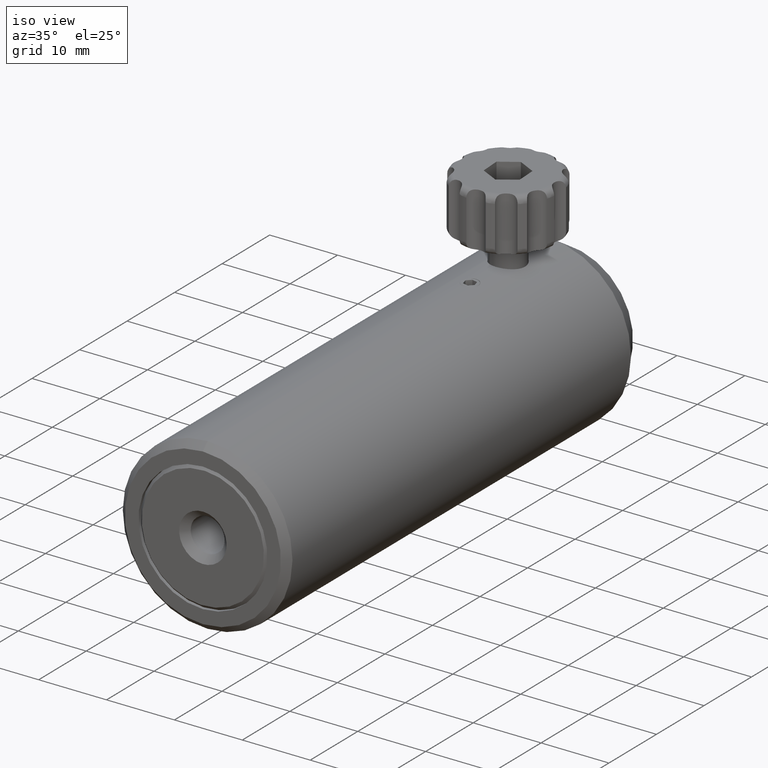
[diagram: clean part render]
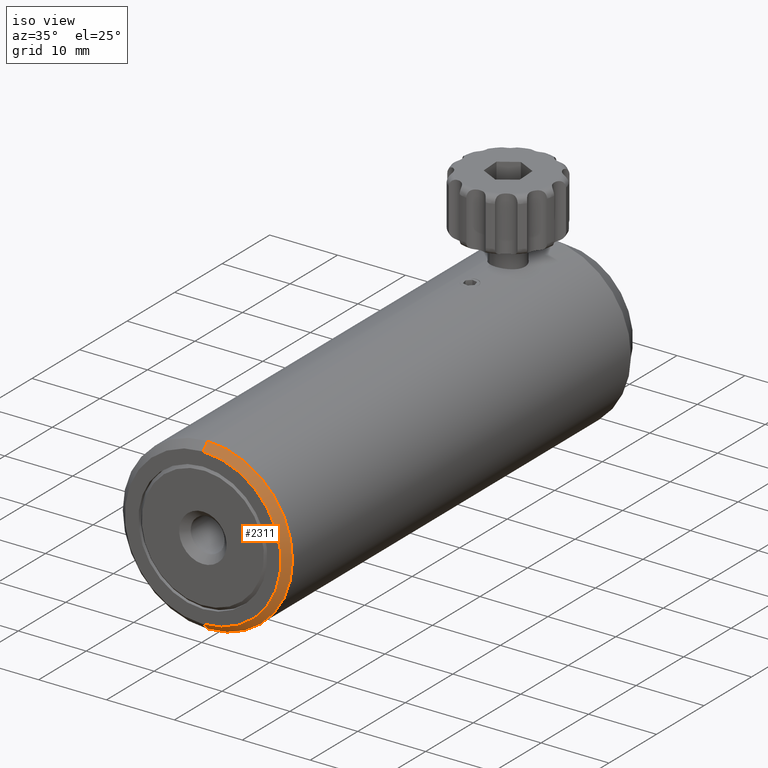
[diagram: same view with one face highlighted and labeled with its STEP entity id]
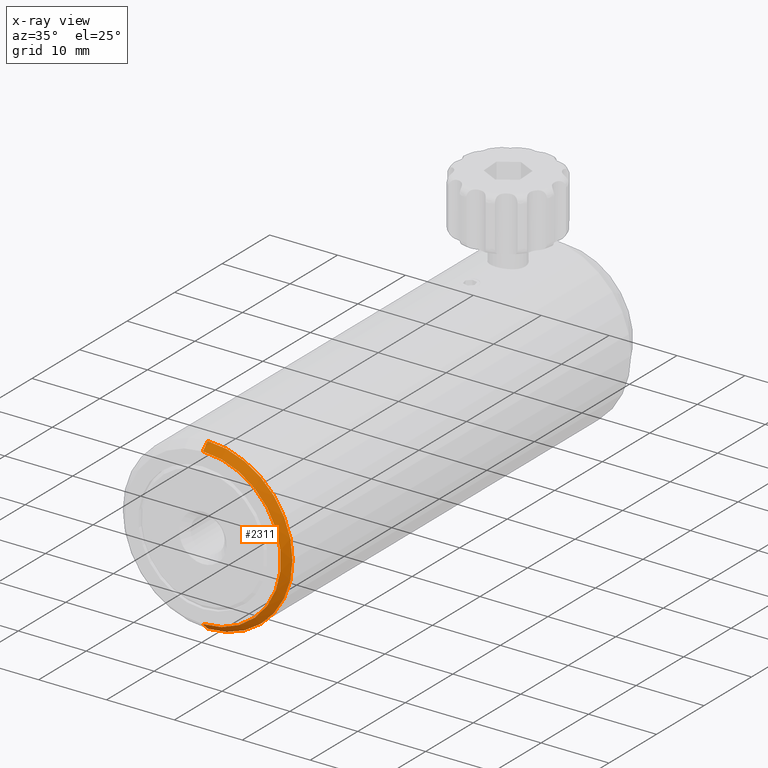
[diagram: x-ray of the same camera — body ghosted, the highlighted face saturated]
A machine part, iso view. The second image highlights one B-rep face of the part: STEP entity #2311.
The next image is the same camera in x-ray: the body ghosted, the highlighted face saturated — about 0% of this face is hidden behind the body in this view.
In plain terms, the highlighted conical surface has half-angle 45 deg.
Its self-contained STEP definition (entity closure, byte-faithful):
#407 = DIRECTION ( 'NONE',  ( -6.210082770215418800E-016, 0.7071067811865462400, -0.7071067811865489100 ) ) ;
#427 = AXIS2_PLACEMENT_3D ( 'NONE', #537, #953, #5065 ) ;
#512 = DIRECTION ( 'NONE',  ( -1.502285461903961200E-018, 1.000000000000000000, 4.971860657915503100E-018 ) ) ;
#537 = CARTESIAN_POINT ( 'NONE',  ( 0.0000000000000000000, -9.728264329007521000, 0.0000000000000000000 ) ) ;
#679 = VECTOR ( 'NONE', #2929, 1000.000000000000000 ) ;
#819 = EDGE_CURVE ( 'NONE', #3725, #3977, #1598, .T. ) ;
#953 = DIRECTION ( 'NONE',  ( 1.502285461903961200E-018, -1.000000000000000000, -4.971860657915503100E-018 ) ) ;
#1020 = EDGE_CURVE ( 'NONE', #4003, #2083, #2653, .T. ) ;
#1337 = DIRECTION ( 'NONE',  ( 9.992007221626420700E-016, 0.0000000000000000000, 1.000000000000000000 ) ) ;
#1598 = CIRCLE ( 'NONE', #427, 11.49999999999998200 ) ;
#1666 = CARTESIAN_POINT ( 'NONE',  ( -1.052008136424391700E-014, -9.728264329007521000, -11.49999999999999600 ) ) ;
#2064 = ORIENTED_EDGE ( 'NONE', *, *, #1020, .T. ) ;
#2083 = VERTEX_POINT ( 'NONE', #4442 ) ;
#2086 = LINE ( 'NONE', #2485, #679 ) ;
#2266 = AXIS2_PLACEMENT_3D ( 'NONE', #4626, #2570, #4611 ) ;
#2311 = ADVANCED_FACE ( 'NONE', ( #3805 ), #2718, .T. ) ;
#2434 = ORIENTED_EDGE ( 'NONE', *, *, #3783, .T. ) ;
#2485 = CARTESIAN_POINT ( 'NONE',  ( 1.249000902703301300E-014, -8.728264329007521000, 12.49999999999998800 ) ) ;
#2488 = CARTESIAN_POINT ( 'NONE',  ( 0.0000000000000000000, -8.728264329007521000, 0.0000000000000000000 ) ) ;
#2570 = DIRECTION ( 'NONE',  ( 1.502285461903961200E-018, -1.000000000000000000, -4.971860657915503100E-018 ) ) ;
#2653 = CIRCLE ( 'NONE', #2266, 12.49999999999998800 ) ;
#2718 = CONICAL_SURFACE ( 'NONE', #3042, 12.49999999999998800, 0.7853981633974509400 ) ;
#2929 = DIRECTION ( 'NONE',  ( 7.054793301703108300E-016, 0.7071067811865462400, 0.7071067811865489100 ) ) ;
#3042 = AXIS2_PLACEMENT_3D ( 'NONE', #2488, #512, #1337 ) ;
#3191 = ORIENTED_EDGE ( 'NONE', *, *, #819, .F. ) ;
#3217 = VECTOR ( 'NONE', #407, 1000.000000000000000 ) ;
#3389 = EDGE_LOOP ( 'NONE', ( #3191, #2434, #2064, #5108 ) ) ;
#3470 = LINE ( 'NONE', #4042, #3217 ) ;
#3725 = VERTEX_POINT ( 'NONE', #1666 ) ;
#3770 = CARTESIAN_POINT ( 'NONE',  ( 1.199115980868264100E-014, -9.728264329007521000, 11.49999999999999600 ) ) ;
#3783 = EDGE_CURVE ( 'NONE', #3725, #4003, #3470, .T. ) ;
#3805 = FACE_OUTER_BOUND ( 'NONE', #3389, .T. ) ;
#3977 = VERTEX_POINT ( 'NONE', #3770 ) ;
#4003 = VERTEX_POINT ( 'NONE', #4974 ) ;
#4042 = CARTESIAN_POINT ( 'NONE',  ( -1.095920052809882300E-014, -8.728264329007521000, -12.49999999999998800 ) ) ;
#4442 = CARTESIAN_POINT ( 'NONE',  ( 1.249000902703301300E-014, -8.728264329007521000, 12.49999999999998800 ) ) ;
#4605 = EDGE_CURVE ( 'NONE', #3977, #2083, #2086, .T. ) ;
#4611 = DIRECTION ( 'NONE',  ( -9.992007221626420700E-016, 0.0000000000000000000, -1.000000000000000000 ) ) ;
#4626 = CARTESIAN_POINT ( 'NONE',  ( 0.0000000000000000000, -8.728264329007521000, 0.0000000000000000000 ) ) ;
#4974 = CARTESIAN_POINT ( 'NONE',  ( -1.095920052809882300E-014, -8.728264329007521000, -12.49999999999998800 ) ) ;
#5065 = DIRECTION ( 'NONE',  ( -9.992007221626420700E-016, 0.0000000000000000000, -1.000000000000000000 ) ) ;
#5108 = ORIENTED_EDGE ( 'NONE', *, *, #4605, .F. ) ;